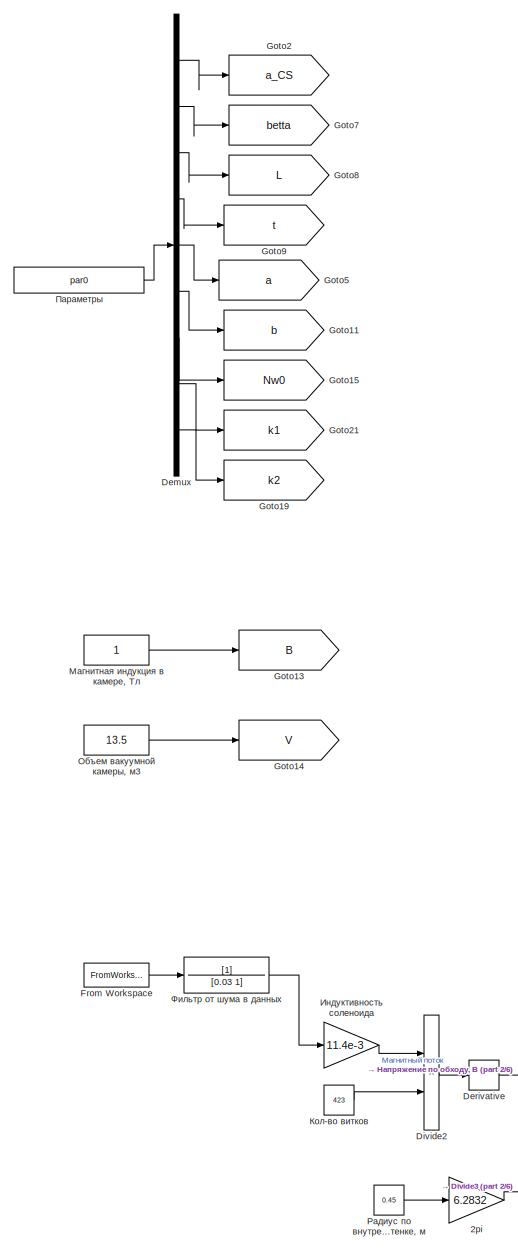
[diagram: root canvas - part 1/6, top left region]
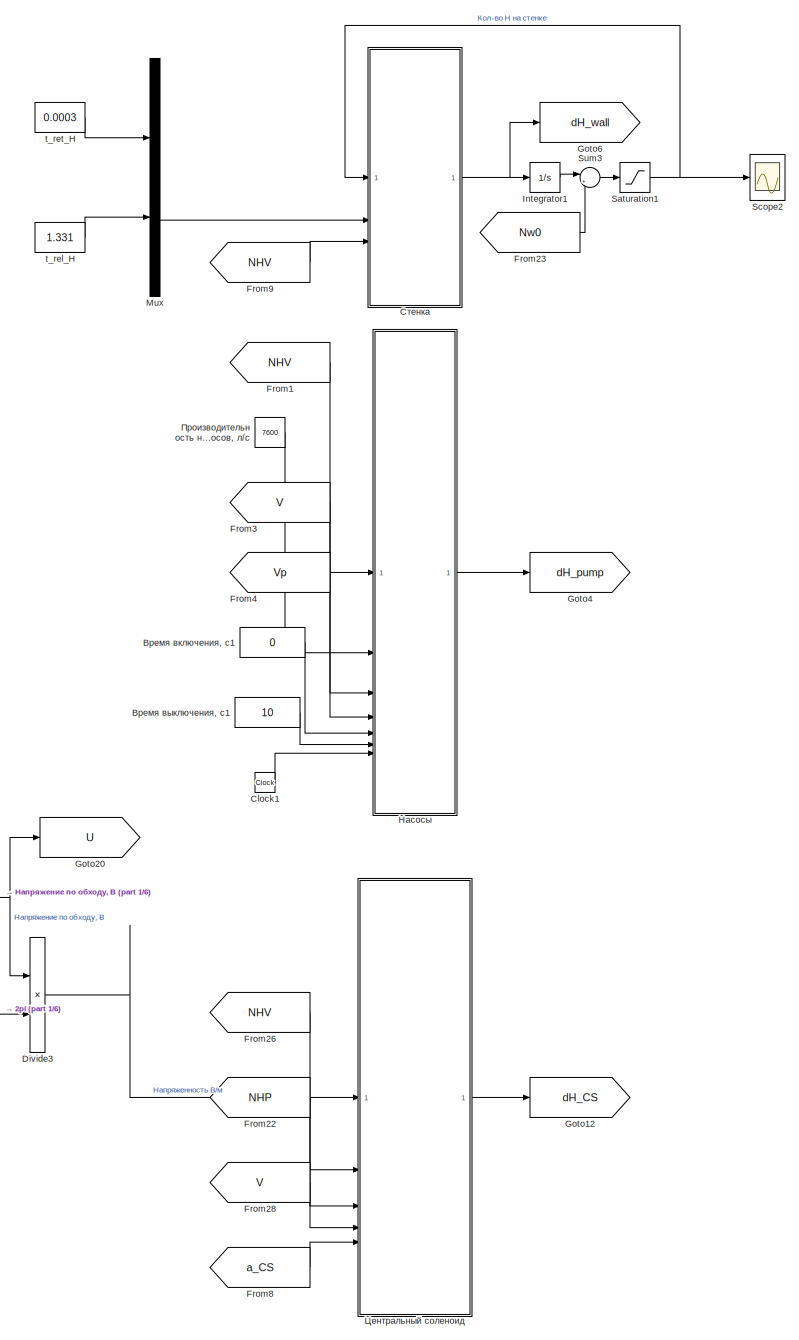
[diagram: root canvas - part 2/6, central region]
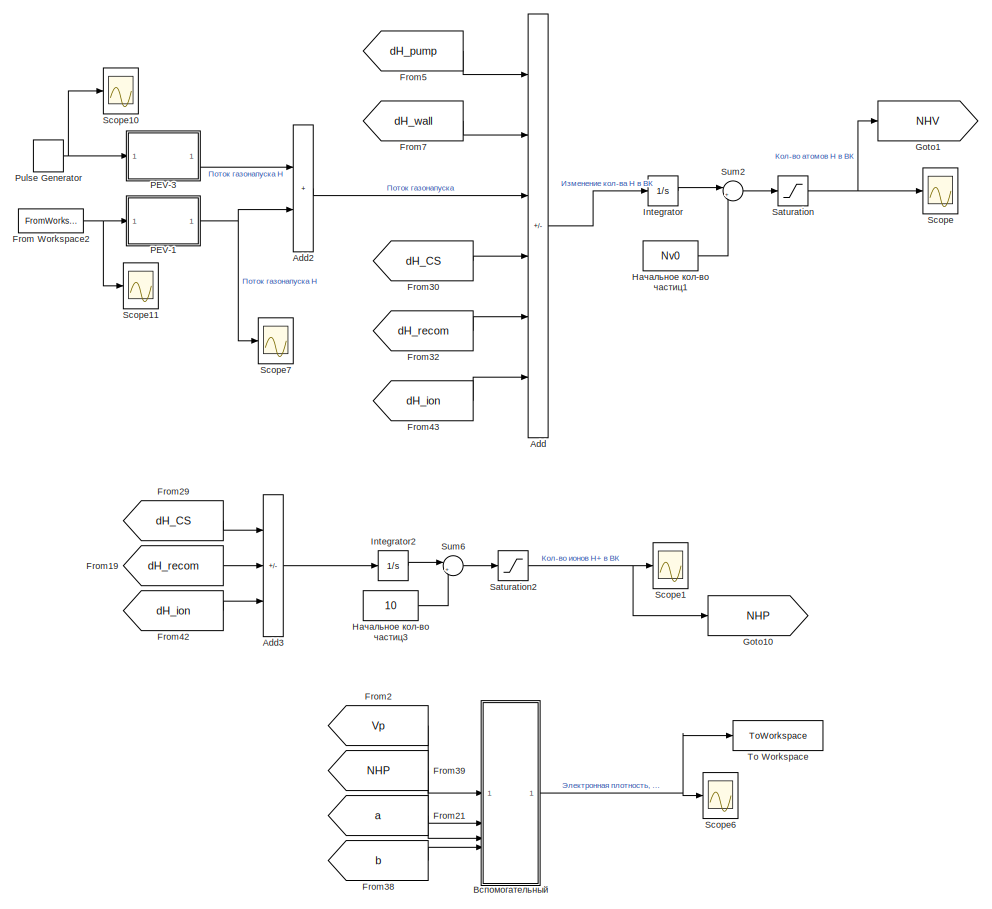
[diagram: root canvas - part 3/6, top right region]
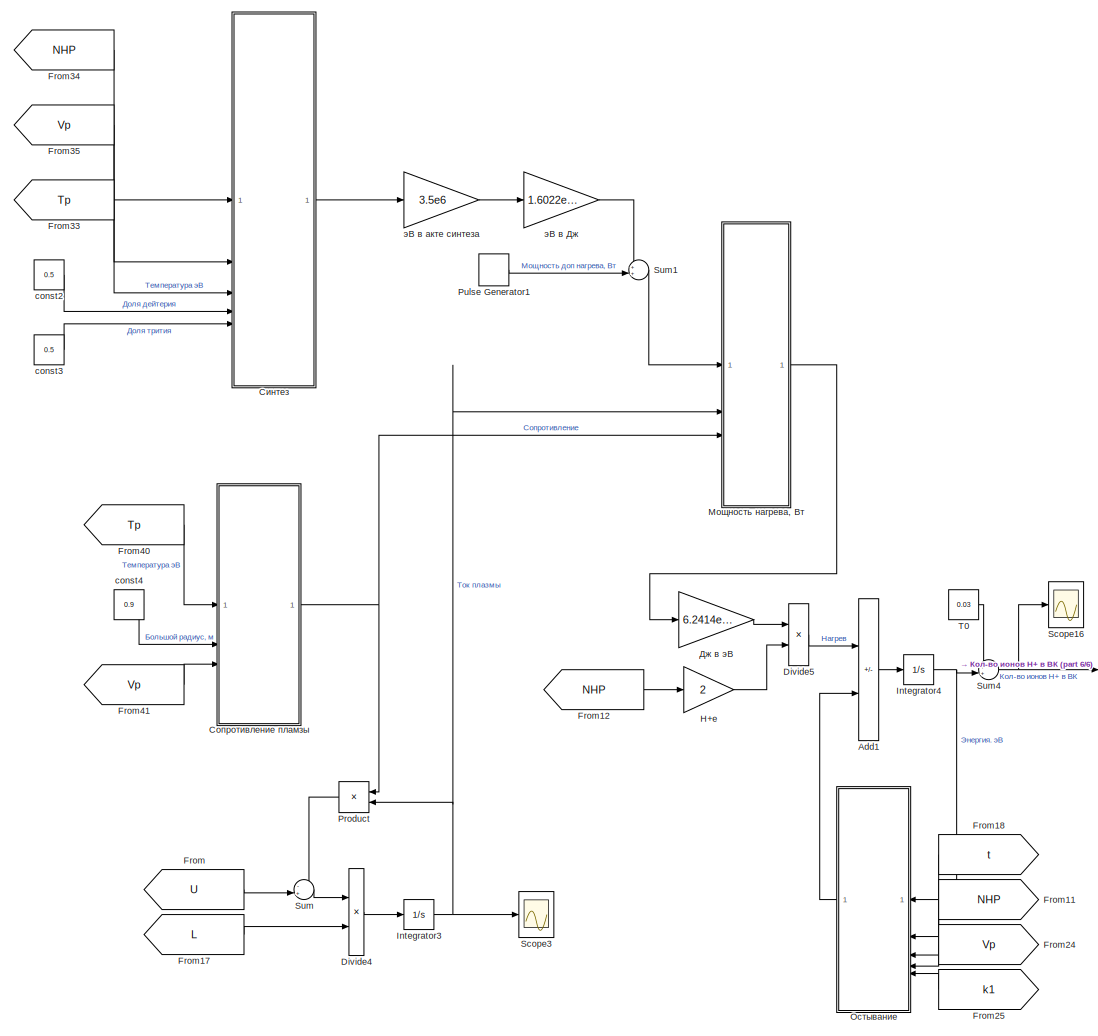
[diagram: root canvas - part 4/6, bottom right region]
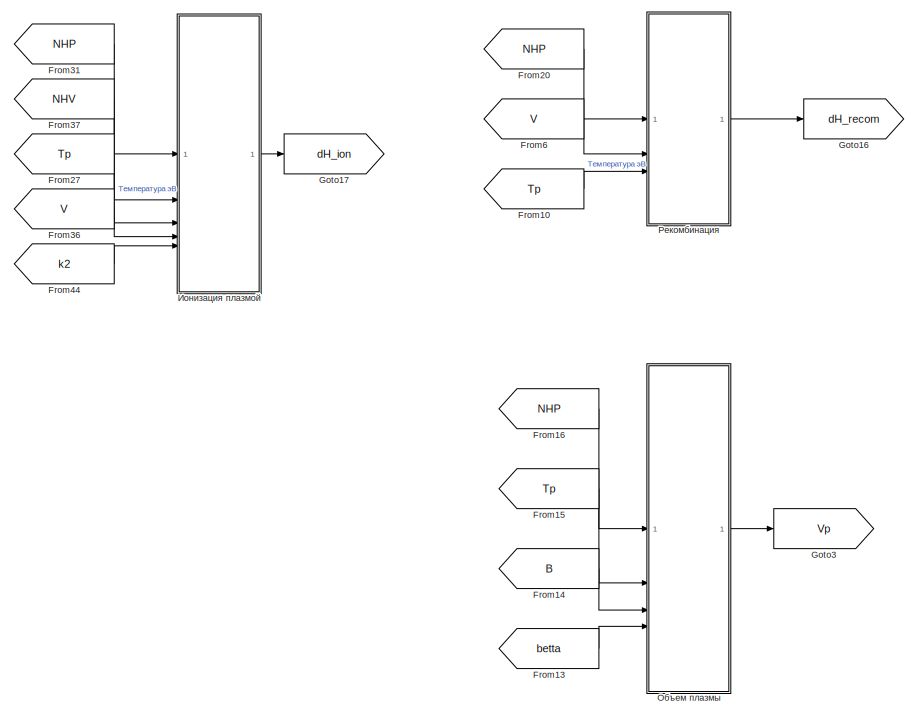
[diagram: root canvas - part 5/6, bottom left region]
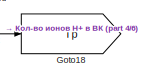
[diagram: root canvas - part 6/6, bottom right region]
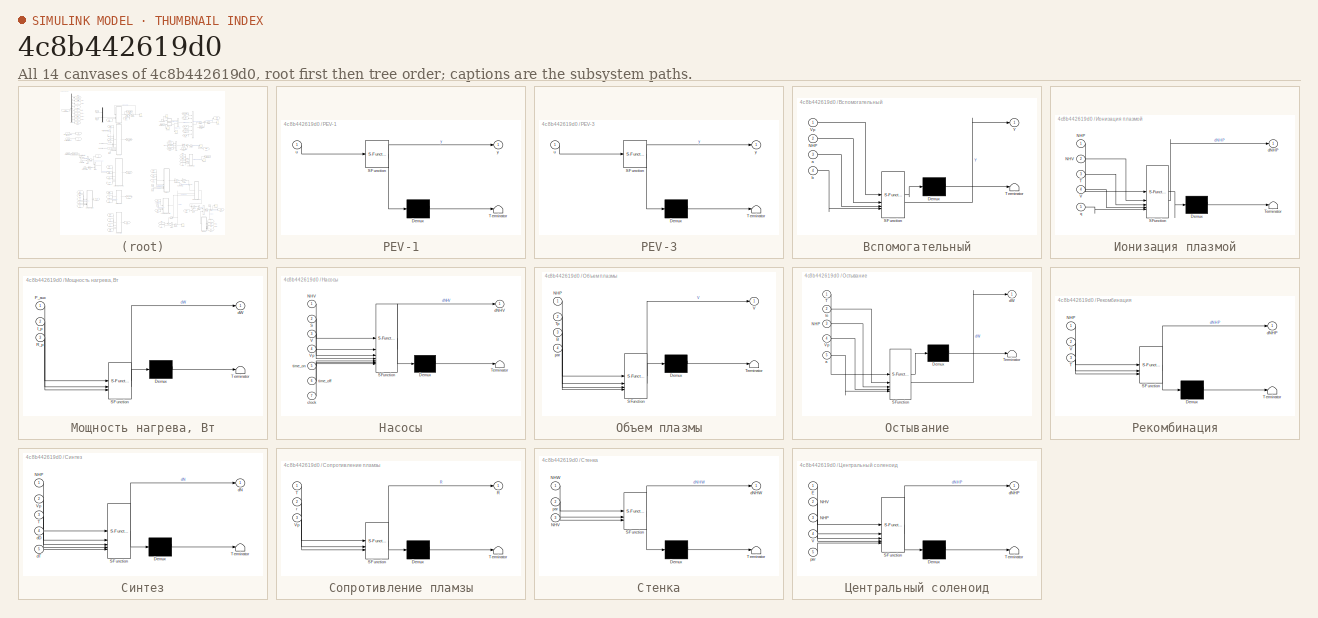
[diagram: thumbnail index - all 14 canvases of the model, root first then tree order]
MODEL slx_4c8b442619d0
KIND model
CONFIG AbsTol = auto
CONFIG EnableMultiTasking = off
CONFIG FixedStep = 1e-4
CONFIG MaxStep = auto
CONFIG MinStep = auto
CONFIG RelTol = 1e-4
CONFIG SampleTimeConstraint = Unconstrained
CONFIG SolverName = daessc
CONFIG StartTime = 0.0
CONFIG StopTime = 6
WORKSPACE source: mxarray member
WORKSPACE N_p0 = 5
WORKSPACE N_v0 = 0
WORKSPACE N_w0 = 0
WORKSPACE t_ion = 0
WORKSPACE t_p = 12
WORKSPACE t_pump = 32
WORKSPACE t_release = 5
WORKSPACE t_retention = 2
BLOCK [Gain] 2pi
  Gain = 6.2832
BLOCK [Sum] Add
  IconShape = rectangular
  Inputs = --+-+-
BLOCK [Sum] Add1
  IconShape = rectangular
  Inputs = +-
BLOCK [Sum] Add2
  IconShape = rectangular
BLOCK [Sum] Add3
  IconShape = rectangular
  Inputs = +-+
BLOCK [Clock] Clock1
BLOCK [Demux] Demux
  Outputs = 9
BLOCK [Derivative] Derivative
BLOCK [Product] Divide2
  Inputs = */
BLOCK [Product] Divide3
  Inputs = */
BLOCK [Product] Divide4
  Inputs = */
BLOCK [Product] Divide5
  Inputs = */
BLOCK [From] From
  GotoTag = U
BLOCK [FromWorkspace] From Workspace
  OutputAfterFinalValue = Holding final value
  VariableName = I_CS
BLOCK [FromWorkspace] From Workspace2
  OutputAfterFinalValue = Holding final value
  VariableName = gas
BLOCK [From] From1
  GotoTag = NHV
BLOCK [From] From10
  GotoTag = Tp
BLOCK [From] From11
  GotoTag = NHP
BLOCK [From] From12
  GotoTag = NHP
BLOCK [From] From13
  GotoTag = betta
BLOCK [From] From14
  GotoTag = B
BLOCK [From] From15
  GotoTag = Tp
BLOCK [From] From16
  GotoTag = NHP
BLOCK [From] From17
  GotoTag = L
BLOCK [From] From18
  GotoTag = t
BLOCK [From] From19
  GotoTag = dH_recom
BLOCK [From] From2
  GotoTag = Vp
BLOCK [From] From20
  GotoTag = NHP
BLOCK [From] From21
  GotoTag = a
BLOCK [From] From22
  GotoTag = NHP
BLOCK [From] From23
  GotoTag = Nw0
BLOCK [From] From24
  GotoTag = Vp
BLOCK [From] From25
  GotoTag = k1
BLOCK [From] From26
  GotoTag = NHV
BLOCK [From] From27
  GotoTag = Tp
BLOCK [From] From28
  GotoTag = V
BLOCK [From] From29
  GotoTag = dH_CS
BLOCK [From] From3
  GotoTag = V
BLOCK [From] From30
  GotoTag = dH_CS
BLOCK [From] From31
  GotoTag = NHP
BLOCK [From] From32
  GotoTag = dH_recom
BLOCK [From] From33
  GotoTag = Tp
BLOCK [From] From34
  GotoTag = NHP
BLOCK [From] From35
  GotoTag = Vp
BLOCK [From] From36
  GotoTag = V
BLOCK [From] From37
  GotoTag = NHV
BLOCK [From] From38
  GotoTag = b
BLOCK [From] From39
  GotoTag = NHP
BLOCK [From] From4
  GotoTag = Vp
BLOCK [From] From40
  GotoTag = Tp
BLOCK [From] From41
  GotoTag = Vp
BLOCK [From] From42
  GotoTag = dH_ion
BLOCK [From] From43
  GotoTag = dH_ion
BLOCK [From] From44
  GotoTag = k2
BLOCK [From] From5
  GotoTag = dH_pump
BLOCK [From] From6
  GotoTag = V
BLOCK [From] From7
  GotoTag = dH_wall
BLOCK [From] From8
  GotoTag = a_CS
BLOCK [From] From9
  GotoTag = NHV
BLOCK [Goto] Goto1
  GotoTag = NHV
BLOCK [Goto] Goto10
  GotoTag = NHP
BLOCK [Goto] Goto11
  GotoTag = b
BLOCK [Goto] Goto12
  GotoTag = dH_CS
BLOCK [Goto] Goto13
  GotoTag = B
BLOCK [Goto] Goto14
  GotoTag = V
BLOCK [Goto] Goto15
  GotoTag = Nw0
BLOCK [Goto] Goto16
  GotoTag = dH_recom
BLOCK [Goto] Goto17
  GotoTag = dH_ion
BLOCK [Goto] Goto18
  GotoTag = Tp
BLOCK [Goto] Goto19
  GotoTag = k2
BLOCK [Goto] Goto2
  GotoTag = a_CS
BLOCK [Goto] Goto20
  GotoTag = U
BLOCK [Goto] Goto21
  GotoTag = k1
BLOCK [Goto] Goto3
  GotoTag = Vp
BLOCK [Goto] Goto4
  GotoTag = dH_pump
BLOCK [Goto] Goto5
  GotoTag = a
BLOCK [Goto] Goto6
  GotoTag = dH_wall
BLOCK [Goto] Goto7
  GotoTag = betta
BLOCK [Goto] Goto8
  GotoTag = L
BLOCK [Goto] Goto9
  GotoTag = t
BLOCK [Gain] H+e
  Gain = 2
BLOCK [Integrator] Integrator
  LowerSaturationLimit = 0
BLOCK [Integrator] Integrator1
  LowerSaturationLimit = 0
BLOCK [Integrator] Integrator2
  LowerSaturationLimit = 0
BLOCK [Integrator] Integrator3
BLOCK [Integrator] Integrator4
  LowerSaturationLimit = 0
BLOCK [Mux] Mux
  DisplayOption = bar
  Inputs = 2
BLOCK [SubSystem] PEV-1
  ErrorFcn = Stateflow.Translate.translate
  PermitHierarchicalResolution = ExplicitOnly
  SFBlockType = MATLAB Function
  TreatAsAtomicUnit = on
BLOCK [Demux] PEV-1/ Demux 
  Outputs = 1
BLOCK [S-Function] PEV-1/ SFunction 
  EnableBusSupport = on
  FunctionName = sf_sfun
  PortCounts = [1 2]
  SFcnIsStateOwnerBlock = off
  SFunctionDeploymentMode = off
  Tag = Stateflow S-Function 3
BLOCK [Terminator] PEV-1/ Terminator 
BLOCK [Inport] PEV-1/u
BLOCK [Outport] PEV-1/y
BLOCK [SubSystem] PEV-3
  ErrorFcn = Stateflow.Translate.translate
  PermitHierarchicalResolution = ExplicitOnly
  SFBlockType = MATLAB Function
  TreatAsAtomicUnit = on
BLOCK [Demux] PEV-3/ Demux 
  Outputs = 1
BLOCK [S-Function] PEV-3/ SFunction 
  EnableBusSupport = on
  FunctionName = sf_sfun
  PortCounts = [1 2]
  SFcnIsStateOwnerBlock = off
  SFunctionDeploymentMode = off
  Tag = Stateflow S-Function 4
BLOCK [Terminator] PEV-3/ Terminator 
BLOCK [Inport] PEV-3/u
BLOCK [Outport] PEV-3/y
BLOCK [Product] Product
BLOCK [DiscretePulseGenerator] Pulse Generator
  Amplitude = 35.8
  Period = 1
  PulseType = Time based
  PulseWidth = 50
BLOCK [DiscretePulseGenerator] Pulse Generator1
  Amplitude = 0
  Period = 100
  PhaseDelay = 2
  PulseType = Time based
BLOCK [Saturate] Saturation
  LowerLimit = 0
  UpperLimit = 1e30
BLOCK [Saturate] Saturation1
  LowerLimit = 0
  UpperLimit = 1e30
BLOCK [Saturate] Saturation2
  LowerLimit = 0
  UpperLimit = 1e30
BLOCK [Scope] Scope
  Floating = off
  NumInputPorts = 1
  ScopeSpecificationString = Simulink.scopes.TimeScopeBlockCfg('CurrentConfiguration', extmgr.ConfigurationSet(extmgr.Configuration('Core','General UI',true,'FigureColor',[1 1 1]),extmgr.Configuration('Core','Source UI',true),extmgr.Configuration('Sources','WiredSimulink',true,'DataLoggingVariableName','ScopeData1'),extmgr.Configuration('Visuals','Time Domain',true,'SerializedDisplays',{struct('MinYLimReal','16965780347862931...<+1775ch>
BLOCK [Scope] Scope1
  Floating = off
  NumInputPorts = 1
  ScopeSpecificationString = Simulink.scopes.TimeScopeBlockCfg('CurrentConfiguration', extmgr.ConfigurationSet(extmgr.Configuration('Core','General UI',true,'FigureColor',[1 1 1]),extmgr.Configuration('Core','Source UI',true),extmgr.Configuration('Sources','WiredSimulink',true,'DataLoggingVariableName','ScopeData1'),extmgr.Configuration('Visuals','Time Domain',true,'SerializedDisplays',{struct('MinYLimReal','-1115568660463482...<+1756ch>
BLOCK [Scope] Scope10
  Floating = off
  NumInputPorts = 1
  ScopeSpecificationString = Simulink.scopes.TimeScopeBlockCfg('CurrentConfiguration', extmgr.ConfigurationSet(extmgr.Configuration('Core','General UI',true,'FigureColor',[1 1 1]),extmgr.Configuration('Core','Source UI',true),extmgr.Configuration('Sources','WiredSimulink',true,'DataLoggingVariableName','ScopeData1'),extmgr.Configuration('Visuals','Time Domain',true,'SerializedDisplays',{struct('MinYLimReal','-4.475','MaxYLimR...<+1613ch>
BLOCK [Scope] Scope11
  Floating = off
  NumInputPorts = 1
  ScopeSpecificationString = Simulink.scopes.TimeScopeBlockCfg('CurrentConfiguration', extmgr.ConfigurationSet(extmgr.Configuration('Core','General UI',true,'FigureColor',[1 1 1]),extmgr.Configuration('Core','Source UI',true),extmgr.Configuration('Sources','WiredSimulink',true,'DataLoggingVariableName','ScopeData2'),extmgr.Configuration('Visuals','Time Domain',true,'SerializedDisplays',{struct('MinYLimReal','-5.98517','MaxYLi...<+1625ch>
BLOCK [Scope] Scope16
  Floating = off
  NumInputPorts = 1
  ScopeSpecificationString = Simulink.scopes.TimeScopeBlockCfg('CurrentConfiguration', extmgr.ConfigurationSet(extmgr.Configuration('Core','General UI',true,'FigureColor',[1 1 1]),extmgr.Configuration('Core','Source UI',true),extmgr.Configuration('Sources','WiredSimulink',true,'DataLoggingVariableName','ScopeData2'),extmgr.Configuration('Visuals','Time Domain',true,'SerializedDisplays',{struct('MinYLimReal','0.0285','MaxYLimR...<+1616ch>
BLOCK [Scope] Scope2
  Floating = off
  NumInputPorts = 1
  ScopeSpecificationString = Simulink.scopes.TimeScopeBlockCfg('CurrentConfiguration', extmgr.ConfigurationSet(extmgr.Configuration('Core','General UI',true,'FigureColor',[1 1 1]),extmgr.Configuration('Core','Source UI',true),extmgr.Configuration('Sources','WiredSimulink',true,'DataLoggingVariableName','ScopeData1'),extmgr.Configuration('Visuals','Time Domain',true,'SerializedDisplays',{struct('MinYLimReal','89991795436866555...<+1797ch>
BLOCK [Scope] Scope3
  Floating = off
  NumInputPorts = 1
  ScopeSpecificationString = Simulink.scopes.TimeScopeBlockCfg('CurrentConfiguration', extmgr.ConfigurationSet(extmgr.Configuration('Core','General UI',true,'FigureColor',[1 1 1]),extmgr.Configuration('Core','Source UI',true),extmgr.Configuration('Sources','WiredSimulink',true,'DataLoggingVariableName','ScopeData1'),extmgr.Configuration('Visuals','Time Domain',true,'SerializedDisplays',{struct('MinYLimReal','-24242.40219','Ma...<+1644ch>
BLOCK [Scope] Scope6
  Floating = off
  NumInputPorts = 1
  ScopeSpecificationString = Simulink.scopes.TimeScopeBlockCfg('CurrentConfiguration', extmgr.ConfigurationSet(extmgr.Configuration('Core','General UI',true,'FigureColor',[1 1 1]),extmgr.Configuration('Core','Source UI',true),extmgr.Configuration('Sources','WiredSimulink',true,'DataLoggingVariableName','ScopeData2'),extmgr.Configuration('Visuals','Time Domain',true,'SerializedDisplays',{struct('MinYLimReal','-1670616169111501...<+1809ch>
BLOCK [Scope] Scope7
  Floating = off
  NumInputPorts = 1
  ScopeSpecificationString = Simulink.scopes.TimeScopeBlockCfg('CurrentConfiguration', extmgr.ConfigurationSet(extmgr.Configuration('Core','General UI',true,'FigureColor',[1 1 1]),extmgr.Configuration('Core','Source UI',true),extmgr.Configuration('Sources','WiredSimulink',true,'DataLoggingVariableName','ScopeData1'),extmgr.Configuration('Visuals','Time Domain',true,'SerializedDisplays',{struct('MinYLimReal','-7711799311823270...<+1769ch>
BLOCK [Sum] Sum
  Inputs = -+|
BLOCK [Sum] Sum1
  Inputs = ++|
BLOCK [Sum] Sum2
  Inputs = |++
BLOCK [Sum] Sum3
  Inputs = |++
BLOCK [Sum] Sum4
  Inputs = ++|
BLOCK [Sum] Sum6
  Inputs = |++
BLOCK [Constant] T0
  Value = 0.03
BLOCK [ToWorkspace] To Workspace
  FixptAsFi = on
  MaxDataPoints = inf
  SampleTime = 0.001
  SaveFormat = Timeseries
  VariableName = nP_model
BLOCK [Constant] const2
  Value = 0.5
BLOCK [Constant] const3
  Value = 0.5
BLOCK [Constant] const4
  Value = 0.9
BLOCK [Constant] t_rel_H
  Value = 1.331
BLOCK [Constant] t_ret_H
  Value = 0.0003
BLOCK [Constant] Время включения, с1
  Value = 0
BLOCK [Constant] Время выключения, с1
  Value = 10
BLOCK [SubSystem] Вспомогательный
  ErrorFcn = Stateflow.Translate.translate
  PermitHierarchicalResolution = ExplicitOnly
  SFBlockType = MATLAB Function
  TreatAsAtomicUnit = on
BLOCK [Demux] Вспомогательный/ Demux 
  Outputs = 1
BLOCK [S-Function] Вспомогательный/ SFunction 
  EnableBusSupport = on
  FunctionName = sf_sfun
  PortCounts = [4 2]
  SFcnIsStateOwnerBlock = off
  SFunctionDeploymentMode = off
  Tag = Stateflow S-Function 11
BLOCK [Terminator] Вспомогательный/ Terminator 
BLOCK [Inport] Вспомогательный/NHP
  Port = 2
BLOCK [Inport] Вспомогательный/Vp
BLOCK [Outport] Вспомогательный/Y
BLOCK [Inport] Вспомогательный/a
  Port = 3
BLOCK [Inport] Вспомогательный/b
  Port = 4
BLOCK [Gain] Дж в эВ
  Gain = 6.2414e18
BLOCK [Gain] Индуктивность соленоида
  Gain = 11.4e-3
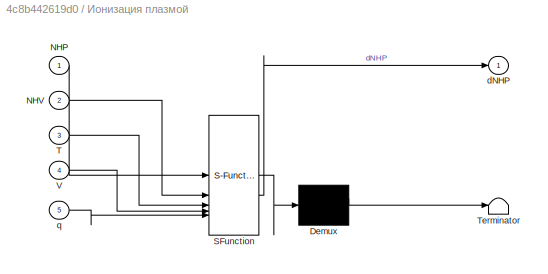
BLOCK [SubSystem] Ионизация плазмой
  ErrorFcn = Stateflow.Translate.translate
  PermitHierarchicalResolution = ExplicitOnly
  SFBlockType = MATLAB Function
  TreatAsAtomicUnit = on
BLOCK [Demux] Ионизация плазмой/ Demux 
  Outputs = 1
BLOCK [S-Function] Ионизация плазмой/ SFunction 
  EnableBusSupport = on
  FunctionName = sf_sfun
  PortCounts = [5 2]
  SFcnIsStateOwnerBlock = off
  SFunctionDeploymentMode = off
  Tag = Stateflow S-Function 13
BLOCK [Terminator] Ионизация плазмой/ Terminator 
BLOCK [Inport] Ионизация плазмой/NHP
BLOCK [Inport] Ионизация плазмой/NHV
  Port = 2
BLOCK [Inport] Ионизация плазмой/T
  Port = 3
BLOCK [Inport] Ионизация плазмой/V
  Port = 4
BLOCK [Outport] Ионизация плазмой/dNHP
BLOCK [Inport] Ионизация плазмой/q
  Port = 5
BLOCK [Constant] Кол-во витков
  Value = 423
BLOCK [Constant] Магнитная индукция в камере, Тл
BLOCK [SubSystem] Мощность нагрева, Вт
  ErrorFcn = Stateflow.Translate.translate
  PermitHierarchicalResolution = ExplicitOnly
  SFBlockType = MATLAB Function
  TreatAsAtomicUnit = on
BLOCK [Demux] Мощность нагрева, Вт/ Demux 
  Outputs = 1
BLOCK [S-Function] Мощность нагрева, Вт/ SFunction 
  EnableBusSupport = on
  FunctionName = sf_sfun
  PortCounts = [3 2]
  SFcnIsStateOwnerBlock = off
  SFunctionDeploymentMode = off
  Tag = Stateflow S-Function 10
BLOCK [Terminator] Мощность нагрева, Вт/ Terminator 
BLOCK [Inport] Мощность нагрева, Вт/I_p
  Port = 2
BLOCK [Inport] Мощность нагрева, Вт/P_aux
BLOCK [Inport] Мощность нагрева, Вт/R_p
  Port = 3
BLOCK [Outport] Мощность нагрева, Вт/dW
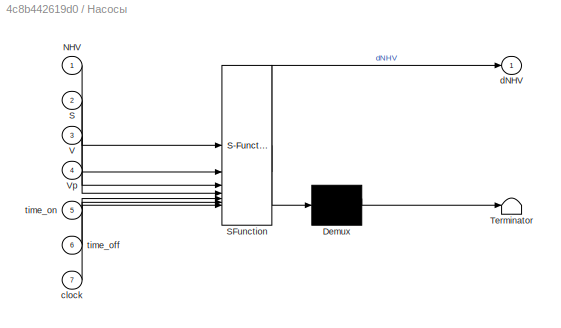
BLOCK [SubSystem] Насосы
  ErrorFcn = Stateflow.Translate.translate
  PermitHierarchicalResolution = ExplicitOnly
  SFBlockType = MATLAB Function
  TreatAsAtomicUnit = on
BLOCK [Demux] Насосы/ Demux 
  Outputs = 1
BLOCK [S-Function] Насосы/ SFunction 
  EnableBusSupport = on
  FunctionName = sf_sfun
  PortCounts = [7 2]
  SFcnIsStateOwnerBlock = off
  SFunctionDeploymentMode = off
  Tag = Stateflow S-Function 2
BLOCK [Terminator] Насосы/ Terminator 
BLOCK [Inport] Насосы/NHV
BLOCK [Inport] Насосы/S
  Port = 2
BLOCK [Inport] Насосы/V
  Port = 3
BLOCK [Inport] Насосы/Vp
  Port = 4
BLOCK [Inport] Насосы/clock
  Port = 7
BLOCK [Outport] Насосы/dNHV
BLOCK [Inport] Насосы/time_off
  Port = 6
BLOCK [Inport] Насосы/time_on
  Port = 5
BLOCK [Constant] Начальное кол-во частиц1
  Value = Nv0
BLOCK [Constant] Начальное кол-во частиц3
  Value = 10
BLOCK [Constant] Объем вакуумной камеры, м3 
  Value = 13.5
BLOCK [SubSystem] Объем плазмы
  ErrorFcn = Stateflow.Translate.translate
  PermitHierarchicalResolution = ExplicitOnly
  SFBlockType = MATLAB Function
  TreatAsAtomicUnit = on
BLOCK [Demux] Объем плазмы/ Demux 
  Outputs = 1
BLOCK [S-Function] Объем плазмы/ SFunction 
  EnableBusSupport = on
  FunctionName = sf_sfun
  PortCounts = [4 2]
  SFcnIsStateOwnerBlock = off
  SFunctionDeploymentMode = off
  Tag = Stateflow S-Function 1
BLOCK [Terminator] Объем плазмы/ Terminator 
BLOCK [Inport] Объем плазмы/B
  Port = 3
BLOCK [Inport] Объем плазмы/NHP
BLOCK [Inport] Объем плазмы/Tp
  Port = 2
BLOCK [Outport] Объем плазмы/V
BLOCK [Inport] Объем плазмы/par
  Port = 4
BLOCK [SubSystem] Остывание
  ErrorFcn = Stateflow.Translate.translate
  PermitHierarchicalResolution = ExplicitOnly
  SFBlockType = MATLAB Function
  TreatAsAtomicUnit = on
BLOCK [Demux] Остывание/ Demux 
  Outputs = 1
BLOCK [S-Function] Остывание/ SFunction 
  EnableBusSupport = on
  FunctionName = sf_sfun
  PortCounts = [5 2]
  SFcnIsStateOwnerBlock = off
  SFunctionDeploymentMode = off
  Tag = Stateflow S-Function 12
BLOCK [Terminator] Остывание/ Terminator 
BLOCK [Inport] Остывание/NHP
  Port = 3
BLOCK [Inport] Остывание/T
BLOCK [Inport] Остывание/Vp
  Port = 4
BLOCK [Inport] Остывание/a
  Port = 5
BLOCK [Outport] Остывание/dW
BLOCK [Inport] Остывание/te
  Port = 2
BLOCK [Constant] Параметры
  Value = par0
BLOCK [Constant] Производительность насосов, л//с
  Value = 7600
BLOCK [Constant] Радиус по внутренней стенке, м
  Value = 0.45
BLOCK [SubSystem] Рекомбинация
  ErrorFcn = Stateflow.Translate.translate
  PermitHierarchicalResolution = ExplicitOnly
  SFBlockType = MATLAB Function
  TreatAsAtomicUnit = on
BLOCK [Demux] Рекомбинация/ Demux 
  Outputs = 1
BLOCK [S-Function] Рекомбинация/ SFunction 
  EnableBusSupport = on
  FunctionName = sf_sfun
  PortCounts = [3 2]
  SFcnIsStateOwnerBlock = off
  SFunctionDeploymentMode = off
  Tag = Stateflow S-Function 6
BLOCK [Terminator] Рекомбинация/ Terminator 
BLOCK [Inport] Рекомбинация/NHP
BLOCK [Inport] Рекомбинация/T
  Port = 3
BLOCK [Inport] Рекомбинация/V
  Port = 2
BLOCK [Outport] Рекомбинация/dNHP
BLOCK [SubSystem] Синтез
  ErrorFcn = Stateflow.Translate.translate
  PermitHierarchicalResolution = ExplicitOnly
  SFBlockType = MATLAB Function
  TreatAsAtomicUnit = on
BLOCK [Demux] Синтез/ Demux 
  Outputs = 1
BLOCK [S-Function] Синтез/ SFunction 
  EnableBusSupport = on
  FunctionName = sf_sfun
  PortCounts = [5 2]
  SFcnIsStateOwnerBlock = off
  SFunctionDeploymentMode = off
  Tag = Stateflow S-Function 8
BLOCK [Terminator] Синтез/ Terminator 
BLOCK [Inport] Синтез/NHP
BLOCK [Inport] Синтез/T
  Port = 3
BLOCK [Inport] Синтез/Vp
  Port = 2
BLOCK [Inport] Синтез/dD
  Port = 4
BLOCK [Outport] Синтез/dN
BLOCK [Inport] Синтез/dT
  Port = 5
BLOCK [SubSystem] Сопротивление пламзы
  ErrorFcn = Stateflow.Translate.translate
  PermitHierarchicalResolution = ExplicitOnly
  SFBlockType = MATLAB Function
  TreatAsAtomicUnit = on
BLOCK [Demux] Сопротивление пламзы/ Demux 
  Outputs = 1
BLOCK [S-Function] Сопротивление пламзы/ SFunction 
  EnableBusSupport = on
  FunctionName = sf_sfun
  PortCounts = [3 2]
  SFcnIsStateOwnerBlock = off
  SFunctionDeploymentMode = off
  Tag = Stateflow S-Function 9
BLOCK [Terminator] Сопротивление пламзы/ Terminator 
BLOCK [Outport] Сопротивление пламзы/R
BLOCK [Inport] Сопротивление пламзы/T
BLOCK [Inport] Сопротивление пламзы/Vp
  Port = 3
BLOCK [Inport] Сопротивление пламзы/r
  Port = 2
BLOCK [SubSystem] Стенка
  ErrorFcn = Stateflow.Translate.translate
  PermitHierarchicalResolution = ExplicitOnly
  SFBlockType = MATLAB Function
  TreatAsAtomicUnit = on
BLOCK [Demux] Стенка/ Demux 
  Outputs = 1
BLOCK [S-Function] Стенка/ SFunction 
  EnableBusSupport = on
  FunctionName = sf_sfun
  PortCounts = [3 2]
  SFcnIsStateOwnerBlock = off
  SFunctionDeploymentMode = off
  Tag = Stateflow S-Function 5
BLOCK [Terminator] Стенка/ Terminator 
BLOCK [Inport] Стенка/NHV
  Port = 3
BLOCK [Inport] Стенка/NHW
BLOCK [Outport] Стенка/dNHW
BLOCK [Inport] Стенка/par
  Port = 2
BLOCK [TransferFcn] Фильтр от шума в данных
  Denominator = [0.03 1]
BLOCK [SubSystem] Центральный соленоид
  ErrorFcn = Stateflow.Translate.translate
  PermitHierarchicalResolution = ExplicitOnly
  SFBlockType = MATLAB Function
  TreatAsAtomicUnit = on
BLOCK [Demux] Центральный соленоид/ Demux 
  Outputs = 1
BLOCK [S-Function] Центральный соленоид/ SFunction 
  EnableBusSupport = on
  FunctionName = sf_sfun
  PortCounts = [5 2]
  SFcnIsStateOwnerBlock = off
  SFunctionDeploymentMode = off
  Tag = Stateflow S-Function 7
BLOCK [Terminator] Центральный соленоид/ Terminator 
BLOCK [Inport] Центральный соленоид/E
BLOCK [Inport] Центральный соленоид/NHP
  Port = 3
BLOCK [Inport] Центральный соленоид/NHV
  Port = 2
BLOCK [Inport] Центральный соленоид/V
  Port = 4
BLOCK [Outport] Центральный соленоид/dNHP
BLOCK [Inport] Центральный соленоид/par
  Port = 5
BLOCK [Gain] эВ в Дж
  Gain = 1.6022e-19
BLOCK [Gain] эВ в акте синтеза
  Gain = 3.5e6
LINE 2pi:1 -> Divide3:2
LINE Add1:1 -> Integrator4:1
LINE Add2:1 -> Add:3
LINE Add3:1 -> Integrator2:1
LINE Add:1 -> Integrator:1
LINE Clock1:1 -> Насосы:7
LINE Demux:1 -> Goto2:1
LINE Demux:2 -> Goto7:1
LINE Demux:3 -> Goto8:1
LINE Demux:4 -> Goto9:1
LINE Demux:5 -> Goto5:1
LINE Demux:6 -> Goto11:1
LINE Demux:7 -> Goto15:1
LINE Demux:8 -> Goto21:1
LINE Demux:9 -> Goto19:1
NET Derivative:1 -> Divide3:1, Goto20:1
LINE Divide2:1 -> Derivative:1
LINE Divide3:1 -> Центральный соленоид:1
LINE Divide4:1 -> Integrator3:1
LINE Divide5:1 -> Add1:1
NET From Workspace2:1 -> PEV-1:1, Scope11:1
LINE From Workspace:1 -> Фильтр от шума в данных:1
LINE From10:1 -> Рекомбинация:3
LINE From11:1 -> Остывание:3
LINE From12:1 -> H+e:1
LINE From13:1 -> Объем плазмы:4
LINE From14:1 -> Объем плазмы:3
LINE From15:1 -> Объем плазмы:2
LINE From16:1 -> Объем плазмы:1
LINE From17:1 -> Divide4:2
LINE From18:1 -> Остывание:2
LINE From19:1 -> Add3:2
LINE From1:1 -> Насосы:1
LINE From20:1 -> Рекомбинация:1
LINE From21:1 -> Вспомогательный:3
LINE From22:1 -> Центральный соленоид:3
LINE From23:1 -> Sum3:2
LINE From24:1 -> Остывание:4
LINE From25:1 -> Остывание:5
LINE From26:1 -> Центральный соленоид:2
LINE From27:1 -> Ионизация плазмой:3
LINE From28:1 -> Центральный соленоид:4
LINE From29:1 -> Add3:1
LINE From2:1 -> Вспомогательный:1
LINE From30:1 -> Add:4
LINE From31:1 -> Ионизация плазмой:1
LINE From32:1 -> Add:5
LINE From33:1 -> Синтез:3
LINE From34:1 -> Синтез:1
LINE From35:1 -> Синтез:2
LINE From36:1 -> Ионизация плазмой:4
LINE From37:1 -> Ионизация плазмой:2
LINE From38:1 -> Вспомогательный:4
LINE From39:1 -> Вспомогательный:2
LINE From3:1 -> Насосы:3
LINE From40:1 -> Сопротивление пламзы:1
LINE From41:1 -> Сопротивление пламзы:3
LINE From42:1 -> Add3:3
LINE From43:1 -> Add:6
LINE From44:1 -> Ионизация плазмой:5
LINE From4:1 -> Насосы:4
LINE From5:1 -> Add:1
LINE From6:1 -> Рекомбинация:2
LINE From7:1 -> Add:2
LINE From8:1 -> Центральный соленоид:5
LINE From9:1 -> Стенка:3
LINE From:1 -> Sum:2
LINE H+e:1 -> Divide5:2
LINE Integrator1:1 -> Sum3:1
LINE Integrator2:1 -> Sum6:1
NET Integrator3:1 -> Product:2, Scope3:1, Мощность нагрева, Вт:2
NET Integrator4:1 -> Sum4:2, Остывание:1
LINE Integrator:1 -> Sum2:1
LINE Mux:1 -> Стенка:2
NET PEV-1:1 -> Add2:2, Scope7:1
LINE PEV-3:1 -> Add2:1
LINE Product:1 -> Sum:1
LINE Pulse Generator1:1 -> Sum1:2
NET Pulse Generator:1 -> PEV-3:1, Scope10:1
NET Saturation1:1 -> Scope2:1, Стенка:1
NET Saturation2:1 -> Goto10:1, Scope1:1
NET Saturation:1 -> Goto1:1, Scope:1
LINE Sum1:1 -> Мощность нагрева, Вт:1
LINE Sum2:1 -> Saturation:1
LINE Sum3:1 -> Saturation1:1
NET Sum4:1 -> Goto18:1, Scope16:1
LINE Sum6:1 -> Saturation2:1
LINE Sum:1 -> Divide4:1
LINE T0:1 -> Sum4:1
LINE const2:1 -> Синтез:4
LINE const3:1 -> Синтез:5
LINE const4:1 -> Сопротивление пламзы:2
LINE t_rel_H:1 -> Mux:2
LINE t_ret_H:1 -> Mux:1
LINE Время включения, с1:1 -> Насосы:5
LINE Время выключения, с1:1 -> Насосы:6
NET Вспомогательный:1 -> Scope6:1, To Workspace:1
LINE Дж в эВ:1 -> Divide5:1
LINE Индуктивность соленоида:1 -> Divide2:1
LINE Ионизация плазмой:1 -> Goto17:1
LINE Кол-во витков:1 -> Divide2:2
LINE Магнитная индукция в камере, Тл:1 -> Goto13:1
LINE Мощность нагрева, Вт:1 -> Дж в эВ:1
LINE Насосы:1 -> Goto4:1
LINE Начальное кол-во частиц1:1 -> Sum2:2
LINE Начальное кол-во частиц3:1 -> Sum6:2
LINE Объем вакуумной камеры, м3 :1 -> Goto14:1
LINE Объем плазмы:1 -> Goto3:1
LINE Остывание:1 -> Add1:2
LINE Параметры:1 -> Demux:1
LINE Производительность насосов, л//с:1 -> Насосы:2
LINE Радиус по внутренней стенке, м:1 -> 2pi:1
LINE Рекомбинация:1 -> Goto16:1
LINE Синтез:1 -> эВ в акте синтеза:1
NET Сопротивление пламзы:1 -> Product:1, Мощность нагрева, Вт:3
NET Стенка:1 -> Goto6:1, Integrator1:1
LINE Фильтр от шума в данных:1 -> Индуктивность соленоида:1
LINE Центральный соленоид:1 -> Goto12:1
LINE эВ в Дж:1 -> Sum1:1
LINE эВ в акте синтеза:1 -> эВ в Дж:1
note: NET lines group one-source signal fan-out (src -> all destinations, sorted); 1:1 wires keep LINE
CHART Стенка states=1 transitions=1
  STATE_LABEL 'eML_blk_kernel()'
  STATE_LABEL 'SCRIPT:\nfunction dNHW= wall(NHW, par, NHV)\n\n%% Константы\nt_retention_H = par(1); %постоянная времени поглощения H\nt_release_H = par(2); %постоянная времени выхода H\n\n%%\ndNHW = NHV / t_retention_H - NHW / t_release_H;\n\nend'
CHART Рекомбинация states=1 transitions=1
  STATE_LABEL 'eML_blk_kernel()'
  STATE_LABEL 'SCRIPT:\nfunction dNHP = recom(NHP, V, T)\n\n%Расчет рекомбинации\ny_vals = [7e-13 3.3249e-13 2.4658e-13 1.1675e-13 4.9391e-14 1.3333e-14 2.8735e-15 5.7433e-16 1.5764e-17 4.0135e-19 1.4e-20 1e-22 1e-40];\nx_vals = [0.01 1.0328 1.5891 4.2339 11.287 44.5668 176.197 644.57 8988.46 1.206e5 1.206e6 1.2e8 1e20];\nq = interp1(x_vals, y_vals, T); %скорость рекомбинации см3с-1\nq = q*1e6; %скорость рекомбинации м...<+50ch>'
CHART Центральный соленоид states=1 transitions=1
  STATE_LABEL 'eML_blk_kernel()'
  STATE_LABEL 'SCRIPT:\nfunction dNHP = CS(E, NHV, NHP, V, par)\n\n    %Константы и параметры\n    a_CS = par(1);\n    e = 1.6022e-19; %заряд электрона, Кл\n    m = 9.1094e-31; %масса электрона, кг\n  \n    %Расчет\n    E = abs(E);\n    n = (NHV + NHP) / V; %концентрация ядер м-3\n    l = a_CS / n; %длина свободного пробега электрона, м\n    W1 = E * l; %энергия, которую преобрел электрон за длину свободного пробега, эВ\n   ...<+429ch>'
CHART Синтез states=1 transitions=1
  STATE_LABEL 'eML_blk_kernel()'
  STATE_LABEL 'SCRIPT:\nfunction dN  = synt(NHP, Vp, T, dD, dT)\n\n%Константы\nmD = 3.3436e-27; %масса дейтрона, кг\nmT = 5.0072e-27; %масса тритона, кг\ne = 1.6022e-19; %заряд электрона, Кл\n\n%Расчет\nvD =  sqrt(2 * (T * e) / mD); %скорость ядер Дейтерия, м/с\nvT =  sqrt(2 * (T * e) /  mT); %скорость ядер Трития, м/с\nv = (vD + vT) / 2; %средняя скорость ядер\nT = T/1000; %Температура плазмы, кэВ\nq = 2e-4/T * exp(-46/sqrt...<+149ch>'
CHART Сопротивление пламзы states=1 transitions=1
  STATE_LABEL 'eML_blk_kernel()'
  STATE_LABEL 'SCRIPT:\nfunction R = current(T, r, Vp)\n\n%Расчет\nT = T / 1000; %температура кэВ\np = 2.4e-2/(T^(3/2)); %удельное сопротивление плазмы, мкОм мм2 м-1\np = p * 1e-6 / (1000 * 1000); %удельное сопротивление плазмы, Ом м2 м-1\n\nl = 2 * pi * r; %длина окружности по большому радиусу, м\nR = p * l * l / Vp; %сопротивление плазменного шнура, Ом\n\nend'
CHART Мощность нагрева, Вт states=1 transitions=1
  STATE_LABEL 'eML_blk_kernel()'
  STATE_LABEL 'SCRIPT:\nfunction dW  = energy(P_aux, I_p, R_p)\n\n%Расчет\nP_current = R_p * I_p^2; %мощность омического нагрева, Вт\ndW = P_current + P_aux;\n\nend'
CHART Вспомогательный states=1 transitions=1
  STATE_LABEL 'eML_blk_kernel()'
  STATE_LABEL 'SCRIPT:\nfunction Y  = A(Vp, NHP, a, b)\n\nq = 1 / (1 + exp(a * b - b * NHP)); %чувствительность прибора\n\nY = q * NHP / Vp;\n\nend'
CHART Остывание states=1 transitions=1
  STATE_LABEL 'eML_blk_kernel()'
  STATE_LABEL 'SCRIPT:\nfunction dW  = energy(T, te, NHP, Vp, a)\n\n%Расчет\nPe = T / te; %энергетическое время жизни\nPrad = a * NHP * T / Vp; %радиационные потери\ndW = Pe + Prad;\n\nend'
CHART Ионизация плазмой states=1 transitions=1
  STATE_LABEL 'eML_blk_kernel()'
  STATE_LABEL 'SCRIPT:\nfunction dNHP = ion(NHP, NHV, T, V, q)\n\n%Расчет ионизации\ny_vals = [0.01e-18 0.2e-18 0.4e-18 1e-18 2e-18 5e-18 12e-18 20e-18 30e-18];\nx_vals = [0 1000 2000 3000 4000 5000 8000 11000 14000];\nQ = interp1(x_vals, y_vals, T);%см2\nQ = Q / 1e4;%м2\n\ndNHP = q * Q * (NHV/V) * NHP * sqrt(T);\n\nend'
CHART Объем плазмы states=1 transitions=1
  STATE_LABEL 'eML_blk_kernel()'
  STATE_LABEL 'SCRIPT:\nfunction V  = volume(NHP, Tp, B, par)\n\n%Параметры и константы\nb = par(1); %параметр бетта\nk = 1.3806e-23; %постоянная Больцмана\n\n%Расчет\nN = NHP; %Кол-во ядер в плазме\nT = Tp * 11640; %температура плазмы, К;\nP = 0.4 * B^2 * 1e6; %давление магнитного поля, Па\nV = N * k * T / b / P;\n\nend'
CHART Насосы states=1 transitions=1
  STATE_LABEL 'eML_blk_kernel()'
  STATE_LABEL 'SCRIPT:\nfunction dNHV = pump(NHV, S, V, Vp, time_on, time_off, clock)\n\nt_pump = (V-Vp) * 1000 / S;\n\nif clock > time_on && clock < time_off\n    dNHV = NHV / t_pump;\nelse\n    dNHV = 0;\nend\n\nend'
CHART PEV-1 states=1 transitions=1
  STATE_LABEL 'eML_blk_kernel()'
  STATE_LABEL 'SCRIPT:\nfunction y = PEV(u)\n    y_vals = [0, 18, 28, 42, 62, 80, 100, 123, 154, 180, 200, 232, 259, 280, 300, 323, 346, 360, 400, 433, 450, 478, 500, 538, 552, 580, 600, 635, 668, 700, 729, 750, 770, 800, 839, 870, 900, 930, 958, 988, 1000, 1050, 1100];\n    x_vals = [20, 32, 35, 40, 44.8, 48.2, 50, 52.2, 54.8, 56.5, 57.5, 60, 61.7, 62.8, 63.9, 65, 66.1, 67.5, 70, 71, 72, 74, 75, 76.5, 78, 80, 82, ...<+238ch>'
CHART PEV-3 states=1 transitions=1
  STATE_LABEL 'eML_blk_kernel()'
  STATE_LABEL 'SCRIPT:\nfunction y = PEV(u)\n    y_vals = [0, 18, 28, 42, 62, 80, 100, 123, 154, 180, 200, 232, 259, 280, 300, 323, 346, 360, 400, 433, 450, 478, 500, 538, 552, 580, 600, 635, 668, 700, 729, 750, 770, 800, 839, 870, 900, 930, 958, 988, 1000, 1050, 1100];\n    x_vals = [20, 32, 35, 40, 44.8, 48.2, 50, 52.2, 54.8, 56.5, 57.5, 60, 61.7, 62.8, 63.9, 65, 66.1, 67.5, 70, 71, 72, 74, 75, 76.5, 78, 80, 82, ...<+238ch>'
CHART  states=0 transitions=0
CHART  states=0 transitions=0
CHART  states=0 transitions=0
CHART  states=0 transitions=0
CHART  states=0 transitions=0
CHART  states=0 transitions=0
CHART  states=0 transitions=0
CHART  states=0 transitions=0
CHART  states=0 transitions=0
CHART  states=0 transitions=0
CHART  states=0 transitions=0
CHART  states=0 transitions=0
CHART  states=0 transitions=0
